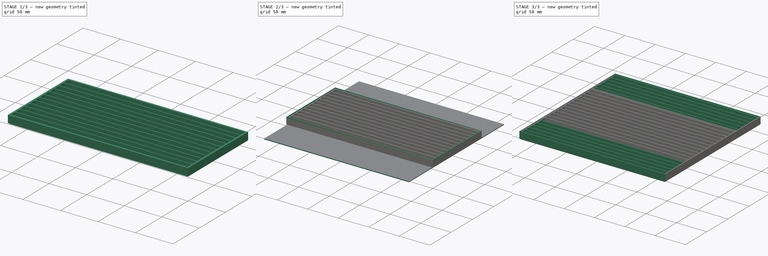
[diagram: build sequence overview — one tinted view per stage of 3, left to right]
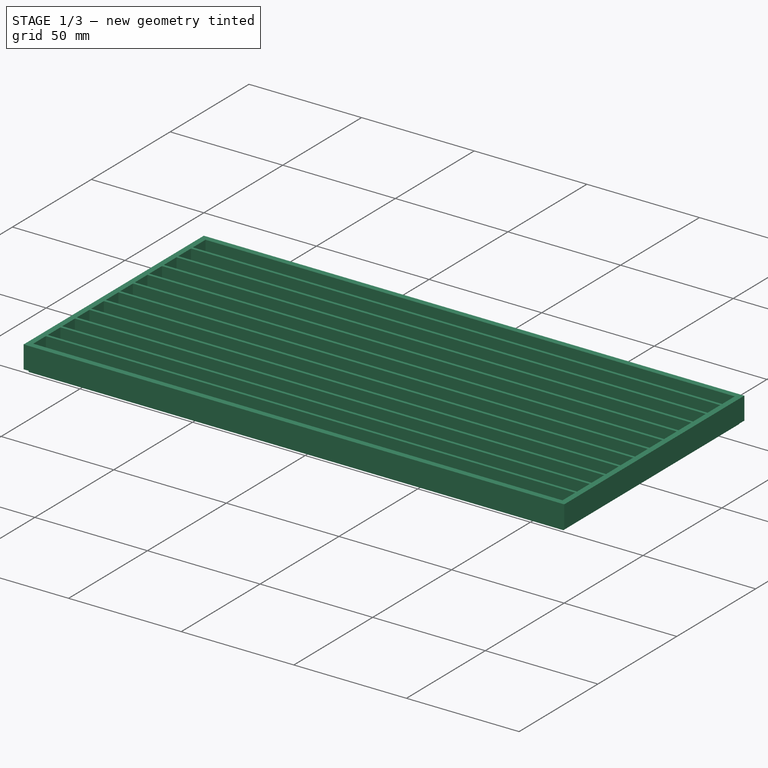
[diagram: stage 1 of 3 — iso view after this stage's code; geometry added in this stage tinted green]
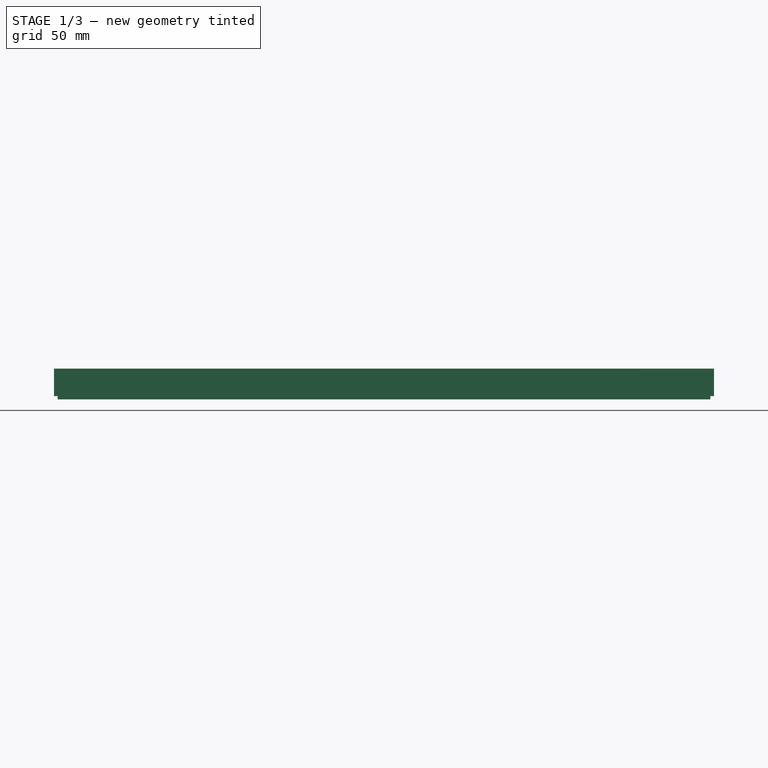
[diagram: stage 1 of 3 — front view after this stage's code; geometry added in this stage tinted green]
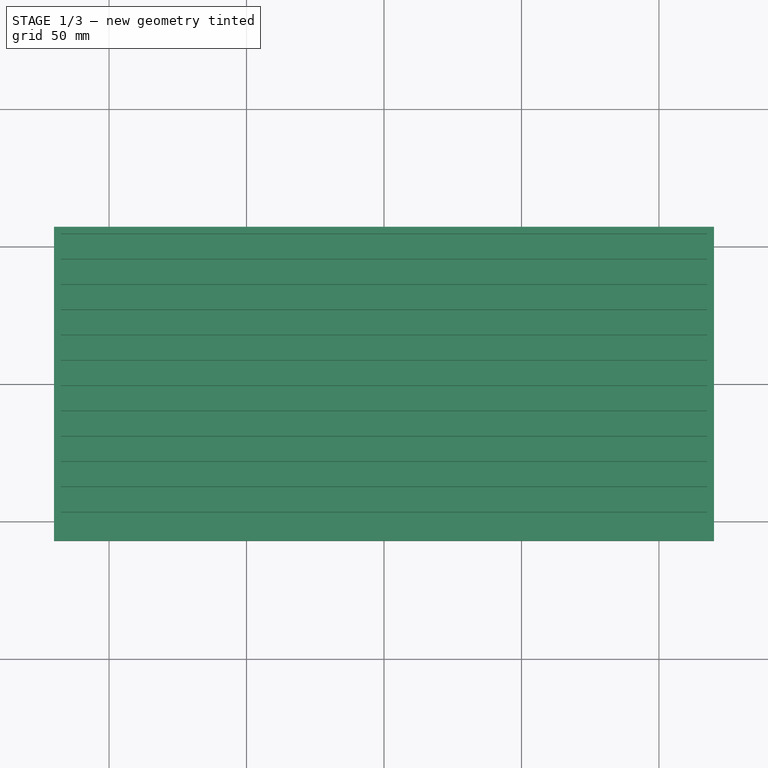
[diagram: stage 1 of 3 — top view after this stage's code; geometry added in this stage tinted green]
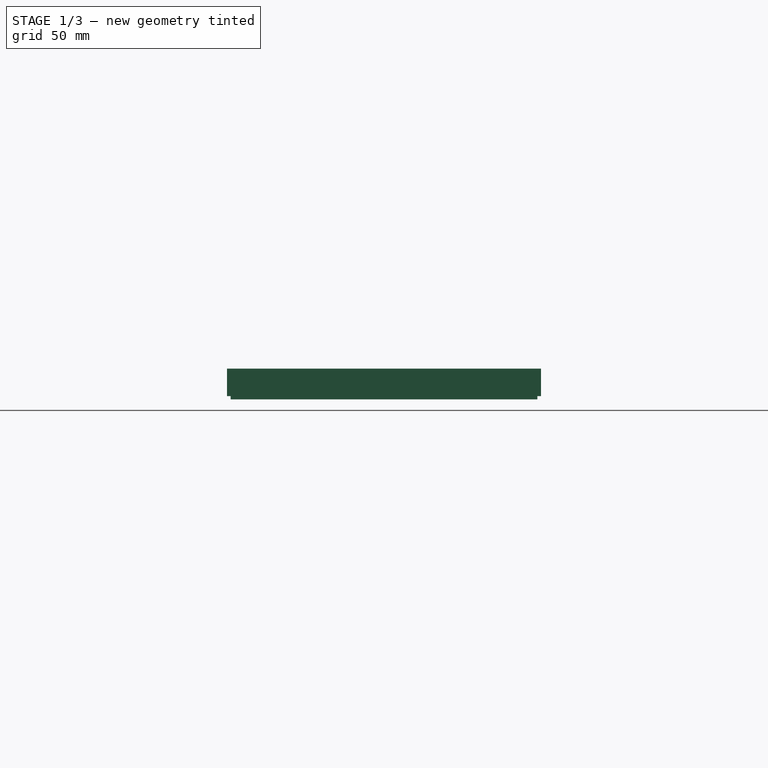
[diagram: stage 1 of 3 — right view after this stage's code; geometry added in this stage tinted green]
FCSTD DOCUMENT  (FreeCAD 0.16R6712 (Git))
Label: SMDTray
License: All rights reserved
LicenseURL: http://en.wikipedia.org/wiki/All_rights_reserved
objects: Sketcher::SketchObject×6, PartDesign::Pad×6
note: 18 computed .brp shape members not serialized (recipe doc carries the construction recipe); baked Part::Feature solids carry a one-line shape summary decoded from their .brp

FEATURE [Sketcher::SketchObject] Sketch004  label="Base001"
  sketch-geometry (4):
    g0: LineSegment StartX=-118.7 StartY=55.8 StartZ=0 EndX=118.7 EndY=55.8 EndZ=0
    g1: LineSegment StartX=118.7 StartY=55.8 StartZ=0 EndX=118.7 EndY=-55.8 EndZ=0
    g2: LineSegment StartX=118.7 StartY=-55.8 StartZ=0 EndX=-118.7 EndY=-55.8 EndZ=0
    g3: LineSegment StartX=-118.7 StartY=-55.8 StartZ=0 EndX=-118.7 EndY=55.8 EndZ=0
  constraints (12):
    c: Coincident(g0,g1)
    c: Coincident(g1,g2)
    c: Coincident(g2,g3)
    c: Coincident(g3,g0)
    c: Horizontal(g0)
    c: Horizontal(g2)
    c: Vertical(g1)
    c: Vertical(g3)
    c: Symmetric(g0,g0,g-2)
    c: DistanceX(g0,g0) = 237.4
    c: Symmetric(g0,g2,g-1)
    c: DistanceY(g3,g3) = 111.6
FEATURE [PartDesign::Pad] Pad003
  Length = 1.2
  Length2 = 100
  Sketch = -> Sketch004
  Type = 0
FEATURE [Sketcher::SketchObject] Sketch003  label="Grid001"
  Placement = pos=(0,0,1.2) rot=(0,0,1;0rad)
  Support = -> Pad003 [Face6]
  sketch-geometry (65):
    g0: LineSegment StartX=-120 StartY=57.1 StartZ=0 EndX=120 EndY=57.1 EndZ=0
    g1: LineSegment StartX=120 StartY=57.1 StartZ=0 EndX=120 EndY=-57.1 EndZ=0
    g2: LineSegment StartX=-120 StartY=-57.1 StartZ=0 EndX=-120 EndY=57.1 EndZ=0
    g3: LineSegment StartX=-117.5 StartY=-54.6 StartZ=0 EndX=117.5 EndY=-54.6 EndZ=0
    g4: LineSegment StartX=117.5 StartY=-54.6 StartZ=0 EndX=117.5 EndY=-46.6 EndZ=0
    g5: LineSegment StartX=117.5 StartY=-46.6 StartZ=0 EndX=-117.5 EndY=-46.6 EndZ=0
    g6: LineSegment StartX=-117.5 StartY=-46.6 StartZ=0 EndX=-117.5 EndY=-54.6 EndZ=0
    g7: LineSegment StartX=117.5 StartY=-37.4 StartZ=0 EndX=-117.5 EndY=-37.4 EndZ=0
    g8: LineSegment StartX=-117.5 StartY=-37.4 StartZ=0 EndX=-117.5 EndY=-45.4 EndZ=0
    g9: LineSegment StartX=-117.5 StartY=-45.4 StartZ=0 EndX=117.5 EndY=-45.4 EndZ=0
    g10: LineSegment StartX=117.5 StartY=-45.4 StartZ=0 EndX=117.5 EndY=-37.4 EndZ=0
    g11: LineSegment [constr] StartX=-117.5 StartY=-46.6 StartZ=0 EndX=-117.5 EndY=-45.4 EndZ=0
    g12: LineSegment StartX=-120 StartY=-57.1 StartZ=0 EndX=120 EndY=-57.1 EndZ=0
    g13: LineSegment StartX=-117.5 StartY=-36.2 StartZ=0 EndX=117.5 EndY=-36.2 EndZ=0
    g14: LineSegment StartX=117.5 StartY=-36.2 StartZ=0 EndX=117.5 EndY=-28.2 EndZ=0
    g15: LineSegment StartX=117.5 StartY=-28.2 StartZ=0 EndX=-117.5 EndY=-28.2 EndZ=0
    g16: LineSegment StartX=-117.5 StartY=-28.2 StartZ=0 EndX=-117.5 EndY=-36.2 EndZ=0
    g17: LineSegment StartX=-117.5 StartY=-19 StartZ=0 EndX=117.5 EndY=-19 EndZ=0
    g18: LineSegment StartX=117.5 StartY=-19 StartZ=0 EndX=117.5 EndY=-27 EndZ=0
    g19: LineSegment StartX=117.5 StartY=-27 StartZ=0 EndX=-117.5 EndY=-27 EndZ=0
    g20: LineSegment StartX=-117.5 StartY=-27 StartZ=0 EndX=-117.5 EndY=-19 EndZ=0
    g21: LineSegment StartX=117.5 StartY=-17.8 StartZ=0 EndX=-117.5 EndY=-17.8 EndZ=0
    g22: LineSegment StartX=-117.5 StartY=-17.8 StartZ=0 EndX=-117.5 EndY=-9.8 EndZ=0
    g23: LineSegment StartX=-117.5 StartY=-9.8 StartZ=0 EndX=117.5 EndY=-9.8 EndZ=0
    g24: LineSegment StartX=117.5 StartY=-9.8 StartZ=0 EndX=117.5 EndY=-17.8 EndZ=0
    g25: LineSegment StartX=-117.5 StartY=-8.6 StartZ=0 EndX=117.5 EndY=-8.6 EndZ=0
    g26: LineSegment StartX=117.5 StartY=-8.6 StartZ=0 EndX=117.5 EndY=-0.6 EndZ=0
    g27: LineSegment StartX=117.5 StartY=-0.6 StartZ=0 EndX=-117.5 EndY=-0.6 EndZ=0
    g28: LineSegment StartX=-117.5 StartY=-0.6 StartZ=0 EndX=-117.5 EndY=-8.6 EndZ=0
    g29: LineSegment StartX=-117.5 StartY=0.6 StartZ=0 EndX=117.5 EndY=0.6 EndZ=0
    g30: LineSegment StartX=117.5 StartY=0.6 StartZ=0 EndX=117.5 EndY=8.6 EndZ=0
    g31: LineSegment StartX=117.5 StartY=8.6 StartZ=0 EndX=-117.5 EndY=8.6 EndZ=0
    g32: LineSegment StartX=-117.5 StartY=8.6 StartZ=0 EndX=-117.5 EndY=0.6 EndZ=0
    g33: LineSegment StartX=117.5 StartY=9.8 StartZ=0 EndX=-117.5 EndY=9.8 EndZ=0
    g34: LineSegment StartX=-117.5 StartY=9.8 StartZ=0 EndX=-117.5 EndY=17.8 EndZ=0
    g35: LineSegment StartX=-117.5 StartY=17.8 StartZ=0 EndX=117.5 EndY=17.8 EndZ=0
    g36: LineSegment StartX=117.5 StartY=17.8 StartZ=0 EndX=117.5 EndY=9.8 EndZ=0
    g37: LineSegment StartX=-117.5 StartY=19 StartZ=0 EndX=117.5 EndY=19 EndZ=0
    g38: LineSegment StartX=117.5 StartY=19 StartZ=0 EndX=117.5 EndY=27 EndZ=0
    g39: LineSegment StartX=117.5 StartY=27 StartZ=0 EndX=-117.5 EndY=27 EndZ=0
    g40: LineSegment StartX=-117.5 StartY=27 StartZ=0 EndX=-117.5 EndY=19 EndZ=0
    g41: LineSegment StartX=117.5 StartY=28.2 StartZ=0 EndX=-117.5 EndY=28.2 EndZ=0
    g42: LineSegment StartX=-117.5 StartY=28.2 StartZ=0 EndX=-117.5 EndY=36.2 EndZ=0
    g43: LineSegment StartX=-117.5 StartY=36.2 StartZ=0 EndX=117.5 EndY=36.2 EndZ=0
    g44: LineSegment StartX=117.5 StartY=36.2 StartZ=0 EndX=117.5 EndY=28.2 EndZ=0
    g45: LineSegment [constr] StartX=-117.5 StartY=-37.4 StartZ=0 EndX=-117.5 EndY=-36.2 EndZ=0
    g46: LineSegment [constr] StartX=-117.5 StartY=-28.2 StartZ=0 EndX=-117.5 EndY=-27 EndZ=0
    g47: LineSegment [constr] StartX=-117.5 StartY=-19 StartZ=0 EndX=-117.5 EndY=-17.8 EndZ=0
    g48: LineSegment [constr] StartX=-117.5 StartY=-9.8 StartZ=0 EndX=-117.5 EndY=-8.6 EndZ=0
    g49: LineSegment [constr] StartX=-117.5 StartY=-0.6 StartZ=0 EndX=-117.5 EndY=0.6 EndZ=0
    g50: LineSegment [constr] StartX=-117.5 StartY=8.6 StartZ=0 EndX=-117.5 EndY=9.8 EndZ=0
    g51: LineSegment [constr] StartX=-117.5 StartY=17.8 StartZ=0 EndX=-117.5 EndY=19 EndZ=0
    g52: LineSegment [constr] StartX=-117.5 StartY=27 StartZ=0 EndX=-117.5 EndY=28.2 EndZ=0
    g53: LineSegment StartX=-117.5 StartY=37.4 StartZ=0 EndX=117.5 EndY=37.4 EndZ=0
    g54: LineSegment StartX=117.5 StartY=37.4 StartZ=0 EndX=117.5 EndY=45.4 EndZ=0
    g55: LineSegment StartX=117.5 StartY=45.4 StartZ=0 EndX=-117.5 EndY=45.4 EndZ=0
    g56: LineSegment StartX=-117.5 StartY=45.4 StartZ=0 EndX=-117.5 EndY=37.4 EndZ=0
    g57: LineSegment StartX=117.5 StartY=46.6 StartZ=0 EndX=-117.5 EndY=46.6 EndZ=0
    g58: LineSegment StartX=-117.5 StartY=46.6 StartZ=0 EndX=-117.5 EndY=54.6 EndZ=0
    g59: LineSegment StartX=-117.5 StartY=54.6 StartZ=0 EndX=117.5 EndY=54.6 EndZ=0
    g60: LineSegment StartX=117.5 StartY=54.6 StartZ=0 EndX=117.5 EndY=46.6 EndZ=0
    g61: LineSegment [constr] StartX=-117.5 StartY=36.2 StartZ=0 EndX=-117.5 EndY=37.4 EndZ=0
    g62: LineSegment [constr] StartX=-117.5 StartY=45.4 StartZ=0 EndX=-117.5 EndY=46.6 EndZ=0
    g63: LineSegment [constr] StartX=-117.5 StartY=54.6 StartZ=0 EndX=-117.5 EndY=57.1 EndZ=0
    g64: LineSegment [constr] StartX=-117.5 StartY=-54.6 StartZ=0 EndX=-117.5 EndY=-57.1 EndZ=0
  constraints (185):
    c: Horizontal(g0)
    c: Vertical(g1)
    c: Vertical(g2)
    c: Symmetric(g0,g0,g-2)
    c: Symmetric(g0,g2,g-1)
    c: DistanceX(g0,g0) = 240
    c: Coincident(g3,g4)
    c: Coincident(g4,g5)
    c: Coincident(g5,g6)
    c: Coincident(g6,g3)
    c: Horizontal(g3)
    c: Horizontal(g5)
    c: Vertical(g4)
    c: Vertical(g6)
    c: DistanceX(g2,g3) = 2.5
    c: DistanceY(g2,g3) = 2.5
    c: Symmetric(g3,g3,g-2)
    c: DistanceY(g6,g6) = 8
    c: Coincident(g9,g10)
    c: Coincident(g10,g7)
    c: Coincident(g7,g8)
    c: Coincident(g8,g9)
    c: Horizontal(g9)
    c: Horizontal(g7)
    c: Vertical(g10)
    c: Vertical(g8)
    c: Coincident(g11,g5)
    c: Vertical(g11)
    c: Coincident(g8,g11)
    c: DistanceY(g11,g11) = 1.2
    c: Coincident(g12,g2)
    c: Coincident(g12,g1)
    c: Horizontal(g12)
    c: Equal(g8,g6)
    c: Equal(g5,g7)
    c: Coincident(g13,g14)
    c: Coincident(g14,g15)
    c: Coincident(g15,g16)
    c: Coincident(g16,g13)
    c: Horizontal(g13)
    c: Horizontal(g15)
    c: Vertical(g14)
    c: Vertical(g16)
    c: Coincident(g17,g18)
    c: Coincident(g18,g19)
    c: Coincident(g19,g20)
    c: Coincident(g20,g17)
    c: Horizontal(g17)
    c: Horizontal(g19)
    c: Vertical(g18)
    c: Vertical(g20)
    c: Coincident(g21,g22)
    c: Coincident(g22,g23)
    c: Coincident(g23,g24)
    c: Coincident(g24,g21)
    c: Horizontal(g21)
    c: Horizontal(g23)
    c: Vertical(g22)
    c: Vertical(g24)
    c: Coincident(g25,g26)
    c: Coincident(g26,g27)
    c: Coincident(g27,g28)
    c: Coincident(g28,g25)
    c: Horizontal(g25)
    c: Horizontal(g27)
    c: Vertical(g26)
    c: Vertical(g28)
    c: Coincident(g29,g30)
    c: Coincident(g30,g31)
    c: Coincident(g31,g32)
    c: Coincident(g32,g29)
    c: Horizontal(g29)
    c: Horizontal(g31)
    c: Vertical(g30)
    c: Vertical(g32)
    c: Coincident(g33,g34)
    c: Coincident(g34,g35)
    c: Coincident(g35,g36)
    c: Coincident(g36,g33)
    c: Horizontal(g33)
    c: Horizontal(g35)
    c: Vertical(g34)
    c: Vertical(g36)
    c: Coincident(g37,g38)
    c: Coincident(g38,g39)
    c: Coincident(g39,g40)
    c: Coincident(g40,g37)
    c: Horizontal(g37)
    c: Horizontal(g39)
    c: Vertical(g38)
    c: Vertical(g40)
    c: Coincident(g41,g42)
    c: Coincident(g42,g43)
    c: Coincident(g43,g44)
    c: Coincident(g44,g41)
    c: Horizontal(g41)
    c: Horizontal(g43)
    c: Vertical(g42)
    c: Vertical(g44)
    c: Coincident(g45,g7)
    c: Coincident(g45,g13)
    c: Coincident(g46,g15)
    c: Coincident(g46,g19)
    c: Vertical(g46)
    c: Coincident(g47,g17)
    c: Coincident(g47,g21)
    c: Vertical(g47)
    c: Coincident(g48,g22)
    c: Coincident(g48,g25)
    c: Vertical(g48)
    c: Coincident(g49,g27)
    c: Coincident(g49,g29)
    c: Coincident(g50,g31)
    c: Coincident(g50,g33)
    c: Coincident(g51,g34)
    c: Coincident(g51,g37)
    c: Coincident(g52,g39)
    c: Coincident(g52,g41)
    c: Vertical(g52)
    c: Vertical(g51)
    c: Vertical(g50)
    c: Vertical(g49)
    c: Equal(g46,g47)
    c: Equal(g47,g48)
    c: Equal(g48,g49)
    c: Equal(g49,g50)
    c: Equal(g50,g51)
    c: Equal(g51,g52)
    c: Vertical(g45)
    c: Equal(g11,g45)
    c: Equal(g45,g46)
    c: Equal(g6,g8)
    c: Equal(g8,g16)
    c: Equal(g16,g20)
    c: Equal(g20,g22)
    c: Equal(g22,g28)
    c: Equal(g28,g32)
    c: Equal(g32,g34)
    c: Equal(g34,g40)
    c: Equal(g40,g42)
    c: Coincident(g53,g54)
    c: Coincident(g54,g55)
    c: Coincident(g55,g56)
    c: Coincident(g56,g53)
    c: Horizontal(g53)
    c: Horizontal(g55)
    c: Vertical(g54)
    c: Vertical(g56)
    c: Coincident(g57,g58)
    c: Coincident(g58,g59)
    c: Coincident(g59,g60)
    c: Coincident(g60,g57)
    c: Horizontal(g57)
    c: Horizontal(g59)
    c: Vertical(g58)
    c: Vertical(g60)
    c: Coincident(g61,g42)
    c: Coincident(g61,g53)
    c: Coincident(g62,g55)
    c: Coincident(g62,g57)
    c: Vertical(g62)
    c: Vertical(g61)
    c: Equal(g52,g61)
    c: Equal(g61,g62)
    c: Equal(g42,g56)
    c: Equal(g56,g58)
    c: Equal(g7,g15)
    c: Equal(g15,g17)
    c: Equal(g17,g23)
    c: Equal(g23,g27)
    c: Equal(g27,g31)
    c: Equal(g31,g35)
    c: Equal(g35,g39)
    c: Equal(g39,g43)
    c: Equal(g43,g55)
    c: Equal(g55,g59)
    c: Coincident(g63,g58)
    c: Vertical(g63)
    c: Coincident(g64,g3)
    c: PointOnObject(g64,g12)
    c: Vertical(g64)
    c: PointOnObject(g63,g0)
    c: Coincident(g0,g2)
    c: Coincident(g0,g1)
    c: Equal(g63,g64)
FEATURE [PartDesign::Pad] Pad004
  Length = 10
  Length2 = 100
  Sketch = -> Sketch003
  Type = 0
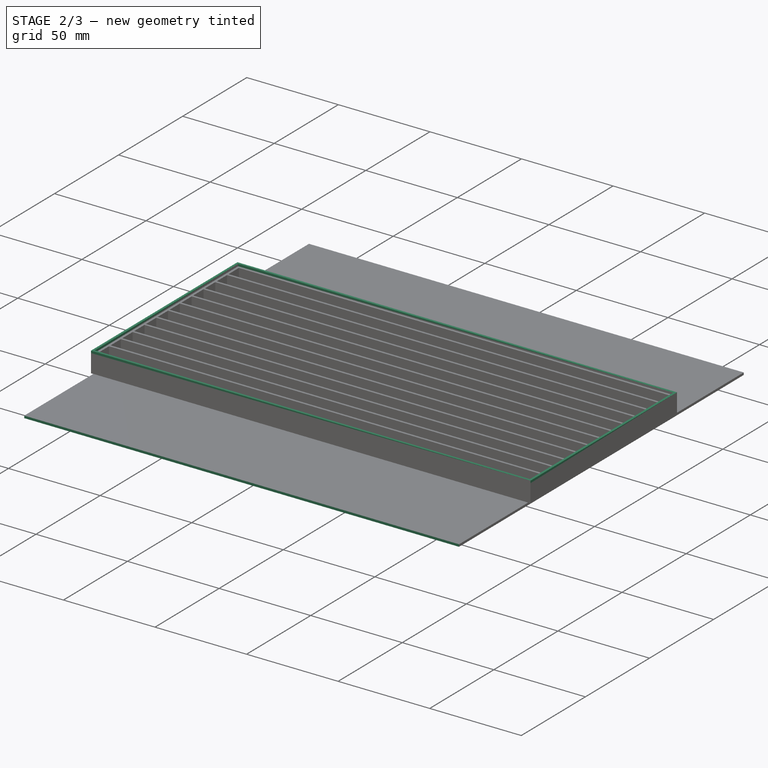
[diagram: stage 2 of 3 — iso view after this stage's code; geometry added in this stage tinted green]
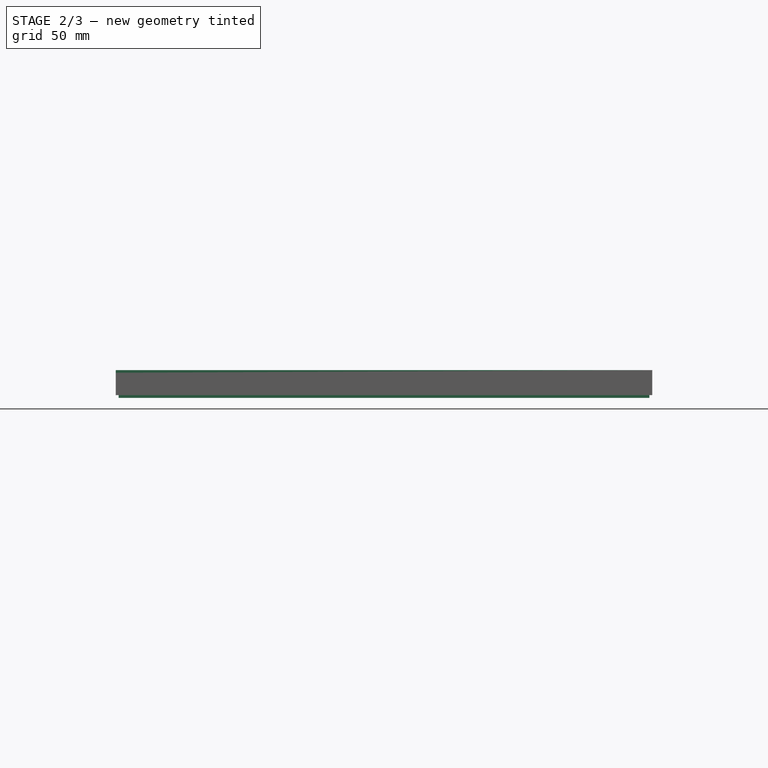
[diagram: stage 2 of 3 — front view after this stage's code; geometry added in this stage tinted green]
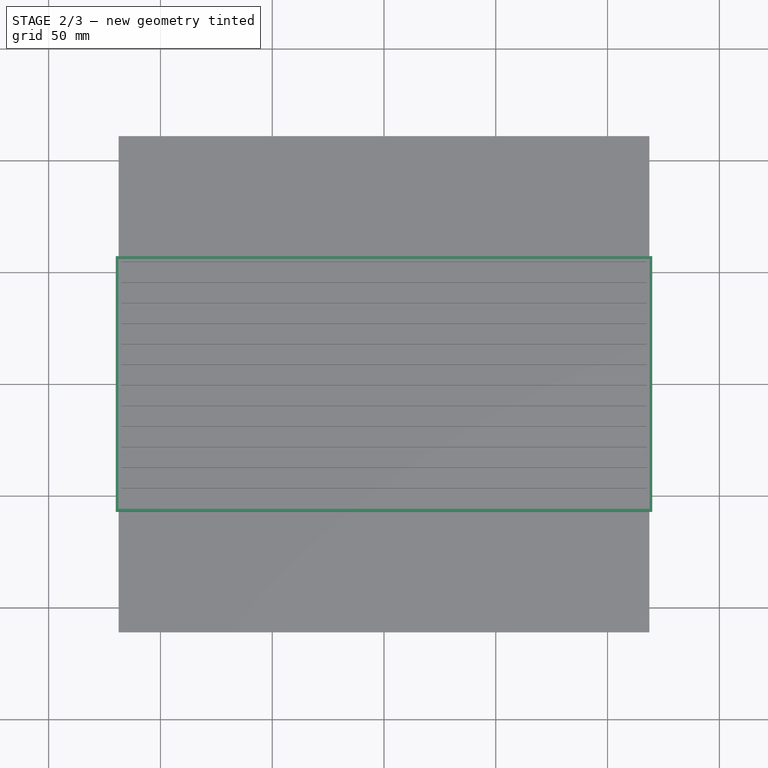
[diagram: stage 2 of 3 — top view after this stage's code; geometry added in this stage tinted green]
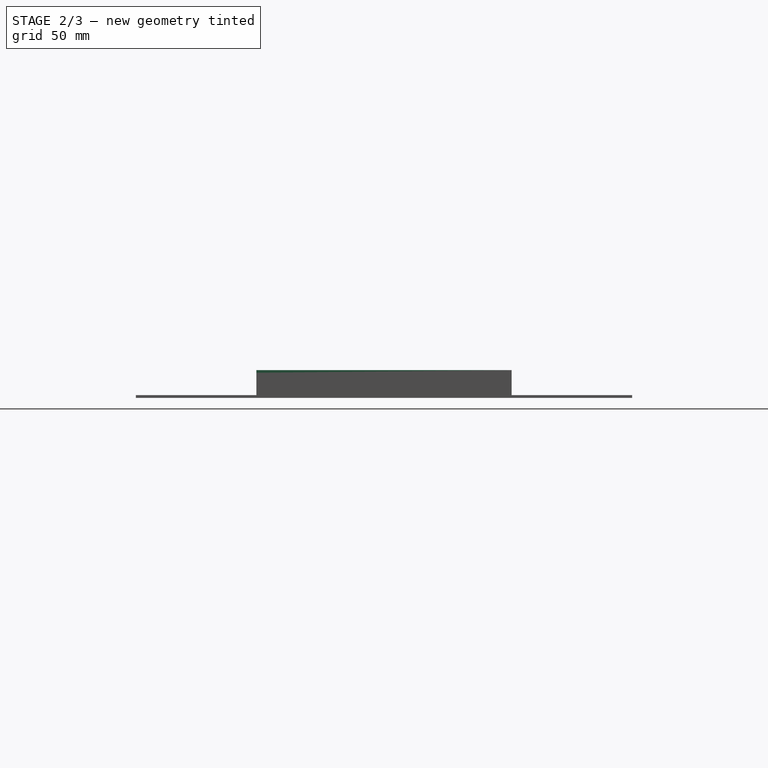
[diagram: stage 2 of 3 — right view after this stage's code; geometry added in this stage tinted green]
FEATURE [Sketcher::SketchObject] Sketch001  label="Base"
  sketch-geometry (4):
    g0: LineSegment StartX=-118.7 StartY=111 StartZ=0 EndX=118.7 EndY=111 EndZ=0
    g1: LineSegment StartX=118.7 StartY=111 StartZ=0 EndX=118.7 EndY=-111 EndZ=0
    g2: LineSegment StartX=118.7 StartY=-111 StartZ=0 EndX=-118.7 EndY=-111 EndZ=0
    g3: LineSegment StartX=-118.7 StartY=-111 StartZ=0 EndX=-118.7 EndY=111 EndZ=0
  constraints (12):
    c: Coincident(g0,g1)
    c: Coincident(g1,g2)
    c: Coincident(g2,g3)
    c: Coincident(g3,g0)
    c: Horizontal(g0)
    c: Horizontal(g2)
    c: Vertical(g1)
    c: Vertical(g3)
    c: Symmetric(g0,g0,g-2)
    c: DistanceX(g0,g0) = 237.4
    c: Symmetric(g0,g2,g-1)
    c: DistanceY(g3,g3) = 222
FEATURE [PartDesign::Pad] Pad
  Length = 1.25
  Length2 = 100
  Sketch = -> Sketch001
  Type = 0
FEATURE [Sketcher::SketchObject] Sketch005
  Placement = pos=(0,0,11.2) rot=(0,0,1;0rad)
  Support = -> Pad004 [Face11]
  sketch-geometry (8):
    g0: LineSegment StartX=-120 StartY=57.1 StartZ=0 EndX=120 EndY=57.1 EndZ=0
    g1: LineSegment StartX=120 StartY=57.1 StartZ=0 EndX=120 EndY=-57.1 EndZ=0
    g2: LineSegment StartX=120 StartY=-57.1 StartZ=0 EndX=-120 EndY=-57.1 EndZ=0
    g3: LineSegment StartX=-120 StartY=-57.1 StartZ=0 EndX=-120 EndY=57.1 EndZ=0
    g4: LineSegment StartX=-118.8 StartY=55.9 StartZ=0 EndX=118.8 EndY=55.9 EndZ=0
    g5: LineSegment StartX=118.8 StartY=55.9 StartZ=0 EndX=118.8 EndY=-55.9 EndZ=0
    g6: LineSegment StartX=118.8 StartY=-55.9 StartZ=0 EndX=-118.8 EndY=-55.9 EndZ=0
    g7: LineSegment StartX=-118.8 StartY=-55.9 StartZ=0 EndX=-118.8 EndY=55.9 EndZ=0
  constraints (24):
    c: Coincident(g0,g1)
    c: Coincident(g1,g2)
    c: Coincident(g2,g3)
    c: Coincident(g3,g0)
    c: Horizontal(g0)
    c: Horizontal(g2)
    c: Vertical(g1)
    c: Vertical(g3)
    c: Symmetric(g0,g0,g-2)
    c: Symmetric(g0,g2,g-1)
    c: DistanceX(g0,g0) = 240
    c: DistanceY(g3,g3) = 114.2
    c: Coincident(g4,g5)
    c: Coincident(g5,g6)
    c: Coincident(g6,g7)
    c: Coincident(g7,g4)
    c: Horizontal(g4)
    c: Horizontal(g6)
    c: Vertical(g5)
    c: Vertical(g7)
    c: Symmetric(g4,g4,g-2)
    c: Symmetric(g4,g6,g-1)
    c: DistanceX(g2,g6) = 1.2
    c: DistanceY(g2,g6) = 1.2
FEATURE [PartDesign::Pad] Pad005
  Length = 1.2
  Length2 = 100
  Sketch = -> Sketch005
  Type = 0
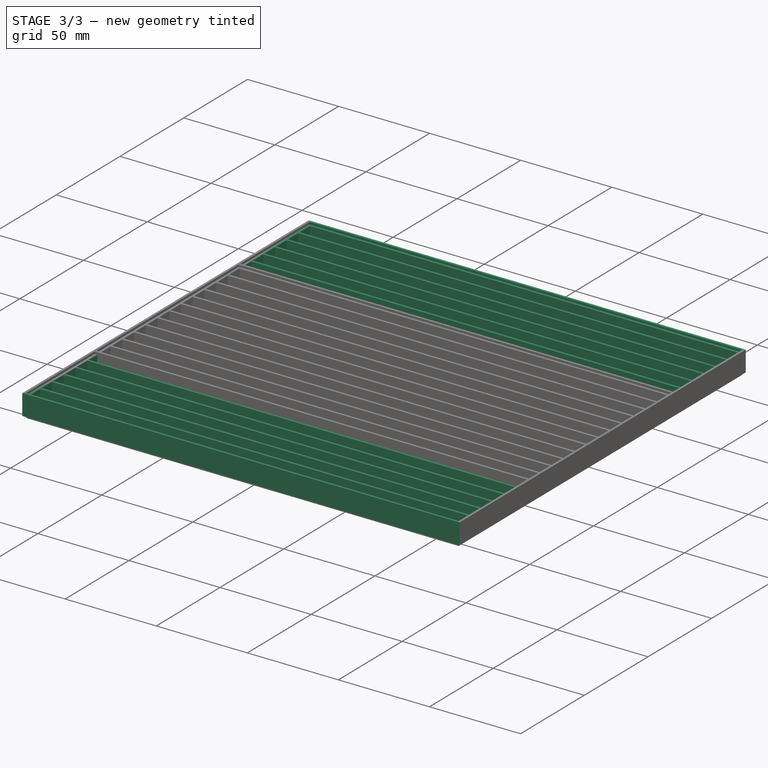
[diagram: stage 3 of 3 — iso view after this stage's code; geometry added in this stage tinted green]
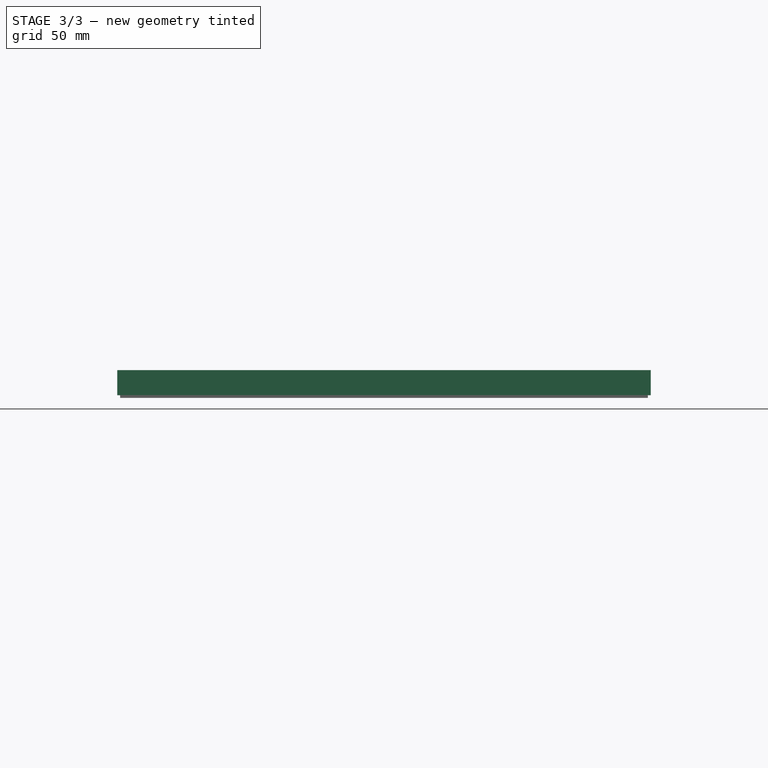
[diagram: stage 3 of 3 — front view after this stage's code; geometry added in this stage tinted green]
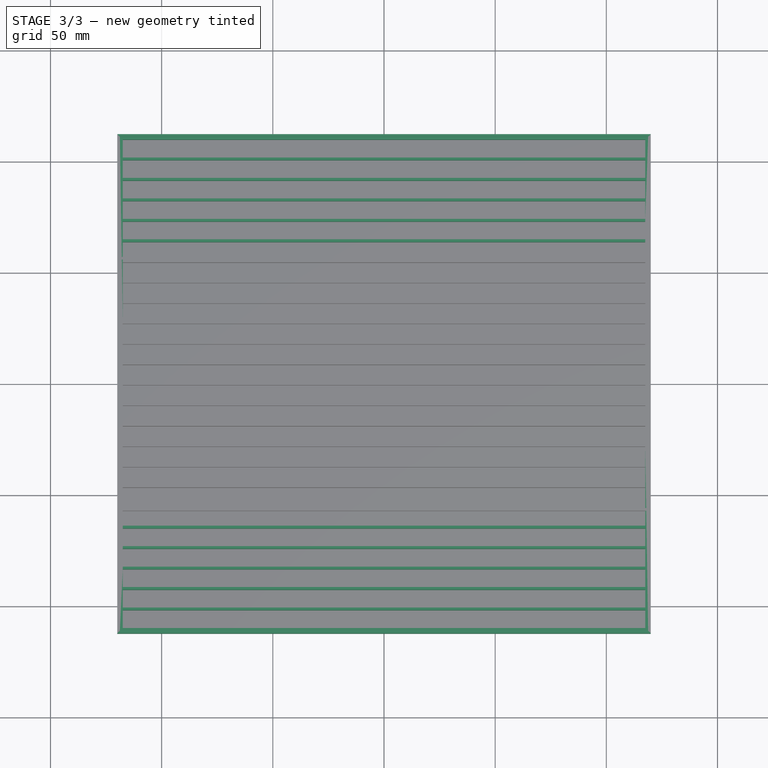
[diagram: stage 3 of 3 — top view after this stage's code; geometry added in this stage tinted green]
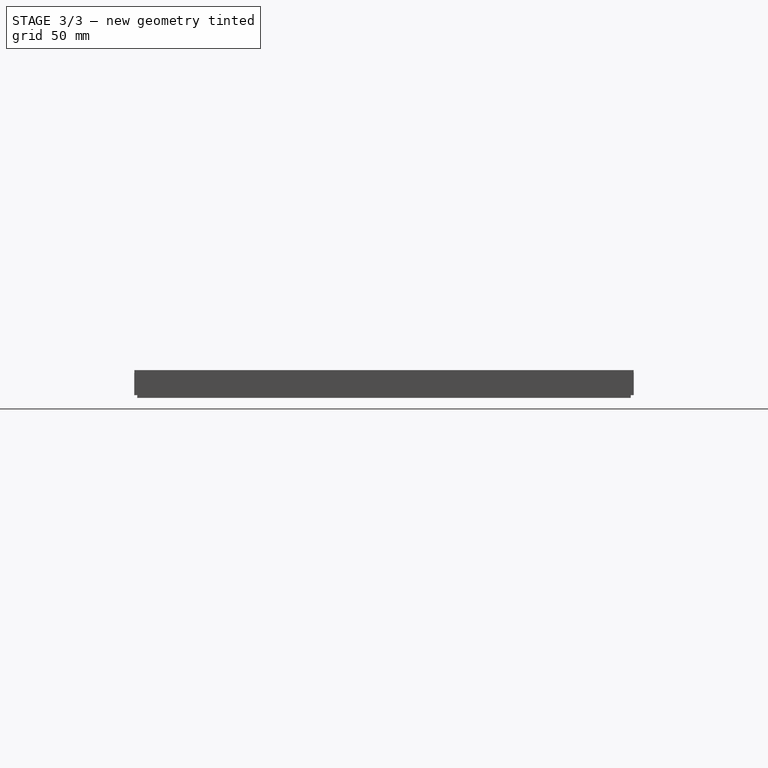
[diagram: stage 3 of 3 — right view after this stage's code; geometry added in this stage tinted green]
FEATURE [Sketcher::SketchObject] Sketch  label="Grid"
  Placement = pos=(0,0,1.25) rot=(0,0,1;0rad)
  Support = -> Pad [Face6]
  sketch-geometry (125):
    g0: LineSegment StartX=-120 StartY=112.323 StartZ=0 EndX=120 EndY=112.323 EndZ=0
    g1: LineSegment StartX=120 StartY=112.323 StartZ=0 EndX=120 EndY=-112.323 EndZ=0
    g2: LineSegment StartX=-120 StartY=-112.323 StartZ=0 EndX=-120 EndY=112.323 EndZ=0
    g3: LineSegment StartX=-117.5 StartY=-109.823 StartZ=0 EndX=117.5 EndY=-109.823 EndZ=0
    g4: LineSegment StartX=117.5 StartY=-109.823 StartZ=0 EndX=117.5 EndY=-101.823 EndZ=0
    g5: LineSegment StartX=117.5 StartY=-101.823 StartZ=0 EndX=-117.5 EndY=-101.823 EndZ=0
    g6: LineSegment StartX=-117.5 StartY=-101.823 StartZ=0 EndX=-117.5 EndY=-109.823 EndZ=0
    g7: LineSegment StartX=117.5 StartY=-92.621 StartZ=0 EndX=-117.5 EndY=-92.621 EndZ=0
    g8: LineSegment StartX=-117.5 StartY=-92.621 StartZ=0 EndX=-117.5 EndY=-100.621 EndZ=0
    g9: LineSegment StartX=-117.5 StartY=-100.621 StartZ=0 EndX=117.5 EndY=-100.621 EndZ=0
    g10: LineSegment StartX=117.5 StartY=-100.621 StartZ=0 EndX=117.5 EndY=-92.621 EndZ=0
    g11: LineSegment [constr] StartX=-117.5 StartY=-101.823 StartZ=0 EndX=-117.5 EndY=-100.621 EndZ=0
    g12: LineSegment StartX=-120 StartY=-112.323 StartZ=0 EndX=120 EndY=-112.323 EndZ=0
    g13: LineSegment StartX=-117.5 StartY=-91.419 StartZ=0 EndX=117.5 EndY=-91.419 EndZ=0
    g14: LineSegment StartX=117.5 StartY=-91.419 StartZ=0 EndX=117.5 EndY=-83.419 EndZ=0
    g15: LineSegment StartX=117.5 StartY=-83.419 StartZ=0 EndX=-117.5 EndY=-83.419 EndZ=0
    g16: LineSegment StartX=-117.5 StartY=-83.419 StartZ=0 EndX=-117.5 EndY=-91.419 EndZ=0
    g17: LineSegment StartX=-117.5 StartY=-74.217 StartZ=0 EndX=117.5 EndY=-74.217 EndZ=0
    g18: LineSegment StartX=117.5 StartY=-74.217 StartZ=0 EndX=117.5 EndY=-82.217 EndZ=0
    g19: LineSegment StartX=117.5 StartY=-82.217 StartZ=0 EndX=-117.5 EndY=-82.217 EndZ=0
    g20: LineSegment StartX=-117.5 StartY=-82.217 StartZ=0 EndX=-117.5 EndY=-74.217 EndZ=0
    g21: LineSegment StartX=117.5 StartY=-73.015 StartZ=0 EndX=-117.5 EndY=-73.015 EndZ=0
    g22: LineSegment StartX=-117.5 StartY=-73.015 StartZ=0 EndX=-117.5 EndY=-65.015 EndZ=0
    g23: LineSegment StartX=-117.5 StartY=-65.015 StartZ=0 EndX=117.5 EndY=-65.015 EndZ=0
    g24: LineSegment StartX=117.5 StartY=-65.015 StartZ=0 EndX=117.5 EndY=-73.015 EndZ=0
    g25: LineSegment StartX=-117.5 StartY=-63.813 StartZ=0 EndX=117.5 EndY=-63.813 EndZ=0
    g26: LineSegment StartX=117.5 StartY=-63.813 StartZ=0 EndX=117.5 EndY=-55.813 EndZ=0
    g27: LineSegment StartX=117.5 StartY=-55.813 StartZ=0 EndX=-117.5 EndY=-55.813 EndZ=0
    g28: LineSegment StartX=-117.5 StartY=-55.813 StartZ=0 EndX=-117.5 EndY=-63.813 EndZ=0
    g29: LineSegment StartX=-117.5 StartY=-54.611 StartZ=0 EndX=117.5 EndY=-54.611 EndZ=0
    g30: LineSegment StartX=117.5 StartY=-54.611 StartZ=0 EndX=117.5 EndY=-46.611 EndZ=0
    g31: LineSegment StartX=117.5 StartY=-46.611 StartZ=0 EndX=-117.5 EndY=-46.611 EndZ=0
    g32: LineSegment StartX=-117.5 StartY=-46.611 StartZ=0 EndX=-117.5 EndY=-54.611 EndZ=0
    g33: LineSegment StartX=117.5 StartY=-45.409 StartZ=0 EndX=-117.5 EndY=-45.409 EndZ=0
    g34: LineSegment StartX=-117.5 StartY=-45.409 StartZ=0 EndX=-117.5 EndY=-37.409 EndZ=0
    g35: LineSegment StartX=-117.5 StartY=-37.409 StartZ=0 EndX=117.5 EndY=-37.409 EndZ=0
    g36: LineSegment StartX=117.5 StartY=-37.409 StartZ=0 EndX=117.5 EndY=-45.409 EndZ=0
    g37: LineSegment StartX=-117.5 StartY=-36.207 StartZ=0 EndX=117.5 EndY=-36.207 EndZ=0
    g38: LineSegment StartX=117.5 StartY=-36.207 StartZ=0 EndX=117.5 EndY=-28.207 EndZ=0
    g39: LineSegment StartX=117.5 StartY=-28.207 StartZ=0 EndX=-117.5 EndY=-28.207 EndZ=0
    g40: LineSegment StartX=-117.5 StartY=-28.207 StartZ=0 EndX=-117.5 EndY=-36.207 EndZ=0
    g41: LineSegment StartX=117.5 StartY=-27.005 StartZ=0 EndX=-117.5 EndY=-27.005 EndZ=0
    g42: LineSegment StartX=-117.5 StartY=-27.005 StartZ=0 EndX=-117.5 EndY=-19.005 EndZ=0
    g43: LineSegment StartX=-117.5 StartY=-19.005 StartZ=0 EndX=117.5 EndY=-19.005 EndZ=0
    g44: LineSegment StartX=117.5 StartY=-19.005 StartZ=0 EndX=117.5 EndY=-27.005 EndZ=0
    g45: LineSegment [constr] StartX=-117.5 StartY=-92.621 StartZ=0 EndX=-117.5 EndY=-91.419 EndZ=0
    g46: LineSegment [constr] StartX=-117.5 StartY=-83.419 StartZ=0 EndX=-117.5 EndY=-82.217 EndZ=0
    g47: LineSegment [constr] StartX=-117.5 StartY=-74.217 StartZ=0 EndX=-117.5 EndY=-73.015 EndZ=0
    g48: LineSegment [constr] StartX=-117.5 StartY=-65.015 StartZ=0 EndX=-117.5 EndY=-63.813 EndZ=0
    g49: LineSegment [constr] StartX=-117.5 StartY=-55.813 StartZ=0 EndX=-117.5 EndY=-54.611 EndZ=0
    g50: LineSegment [constr] StartX=-117.5 StartY=-46.611 StartZ=0 EndX=-117.5 EndY=-45.409 EndZ=0
    g51: LineSegment [constr] StartX=-117.5 StartY=-37.409 StartZ=0 EndX=-117.5 EndY=-36.207 EndZ=0
    g52: LineSegment [constr] StartX=-117.5 StartY=-28.207 StartZ=0 EndX=-117.5 EndY=-27.005 EndZ=0
    g53: LineSegment StartX=-117.5 StartY=-17.803 StartZ=0 EndX=117.5 EndY=-17.803 EndZ=0
    g54: LineSegment StartX=117.5 StartY=-17.803 StartZ=0 EndX=117.5 EndY=-9.803 EndZ=0
    g55: LineSegment StartX=117.5 StartY=-9.803 StartZ=0 EndX=-117.5 EndY=-9.803 EndZ=0
    g56: LineSegment StartX=-117.5 StartY=-9.803 StartZ=0 EndX=-117.5 EndY=-17.803 EndZ=0
    g57: LineSegment StartX=117.5 StartY=-8.601 StartZ=0 EndX=-117.5 EndY=-8.601 EndZ=0
    g58: LineSegment StartX=-117.5 StartY=-8.601 StartZ=0 EndX=-117.5 EndY=-0.601 EndZ=0
    g59: LineSegment StartX=-117.5 StartY=-0.601 StartZ=0 EndX=117.5 EndY=-0.601 EndZ=0
    g60: LineSegment StartX=117.5 StartY=-0.601 StartZ=0 EndX=117.5 EndY=-8.601 EndZ=0
    g61: LineSegment [constr] StartX=-117.5 StartY=-19.005 StartZ=0 EndX=-117.5 EndY=-17.803 EndZ=0
    g62: LineSegment [constr] StartX=-117.5 StartY=-9.803 StartZ=0 EndX=-117.5 EndY=-8.601 EndZ=0
    g63: LineSegment StartX=-117.5 StartY=0.601 StartZ=0 EndX=117.5 EndY=0.601 EndZ=0
    g64: LineSegment StartX=117.5 StartY=0.601 StartZ=0 EndX=117.5 EndY=8.601 EndZ=0
    g65: LineSegment StartX=117.5 StartY=8.601 StartZ=0 EndX=-117.5 EndY=8.601 EndZ=0
    g66: LineSegment StartX=-117.5 StartY=8.601 StartZ=0 EndX=-117.5 EndY=0.601 EndZ=0
    g67: LineSegment [constr] StartX=-117.5 StartY=-0.601 StartZ=0 EndX=-117.5 EndY=0.601 EndZ=0
    g68: LineSegment StartX=-117.5 StartY=9.803 StartZ=0 EndX=117.5 EndY=9.803 EndZ=0
    g69: LineSegment StartX=117.5 StartY=9.803 StartZ=0 EndX=117.5 EndY=17.803 EndZ=0
    g70: LineSegment StartX=117.5 StartY=17.803 StartZ=0 EndX=-117.5 EndY=17.803 EndZ=0
    g71: LineSegment StartX=-117.5 StartY=17.803 StartZ=0 EndX=-117.5 EndY=9.803 EndZ=0
    g72: LineSegment StartX=-117.5 StartY=19.005 StartZ=0 EndX=117.5 EndY=19.005 EndZ=0
    g73: LineSegment StartX=117.5 StartY=19.005 StartZ=0 EndX=117.5 EndY=27.005 EndZ=0
    g74: LineSegment StartX=117.5 StartY=27.005 StartZ=0 EndX=-117.5 EndY=27.005 EndZ=0
    g75: LineSegment StartX=-117.5 StartY=27.005 StartZ=0 EndX=-117.5 EndY=19.005 EndZ=0
    g76: LineSegment StartX=-117.5 StartY=28.207 StartZ=0 EndX=117.5 EndY=28.207 EndZ=0
    g77: LineSegment StartX=117.5 StartY=28.207 StartZ=0 EndX=117.5 EndY=36.207 EndZ=0
    g78: LineSegment StartX=117.5 StartY=36.207 StartZ=0 EndX=-117.5 EndY=36.207 EndZ=0
    g79: LineSegment StartX=-117.5 StartY=36.207 StartZ=0 EndX=-117.5 EndY=28.207 EndZ=0
    g80: LineSegment StartX=-117.5 StartY=37.409 StartZ=0 EndX=117.5 EndY=37.409 EndZ=0
    g81: LineSegment StartX=117.5 StartY=37.409 StartZ=0 EndX=117.5 EndY=45.409 EndZ=0
    g82: LineSegment StartX=117.5 StartY=45.409 StartZ=0 EndX=-117.5 EndY=45.409 EndZ=0
    g83: LineSegment StartX=-117.5 StartY=45.409 StartZ=0 EndX=-117.5 EndY=37.409 EndZ=0
    g84: LineSegment StartX=-117.5 StartY=46.611 StartZ=0 EndX=117.5 EndY=46.611 EndZ=0
    g85: LineSegment StartX=117.5 StartY=46.611 StartZ=0 EndX=117.5 EndY=54.611 EndZ=0
    g86: LineSegment StartX=117.5 StartY=54.611 StartZ=0 EndX=-117.5 EndY=54.611 EndZ=0
    g87: LineSegment StartX=-117.5 StartY=54.611 StartZ=0 EndX=-117.5 EndY=46.611 EndZ=0
    g88: LineSegment StartX=-117.5 StartY=55.813 StartZ=0 EndX=117.5 EndY=55.813 EndZ=0
    g89: LineSegment StartX=117.5 StartY=55.813 StartZ=0 EndX=117.5 EndY=63.813 EndZ=0
    g90: LineSegment StartX=117.5 StartY=63.813 StartZ=0 EndX=-117.5 EndY=63.813 EndZ=0
    g91: LineSegment StartX=-117.5 StartY=63.813 StartZ=0 EndX=-117.5 EndY=55.813 EndZ=0
    g92: LineSegment StartX=-117.5 StartY=65.015 StartZ=0 EndX=117.5 EndY=65.015 EndZ=0
    g93: LineSegment StartX=117.5 StartY=65.015 StartZ=0 EndX=117.5 EndY=73.015 EndZ=0
    g94: LineSegment StartX=117.5 StartY=73.015 StartZ=0 EndX=-117.5 EndY=73.015 EndZ=0
    g95: LineSegment StartX=-117.5 StartY=73.015 StartZ=0 EndX=-117.5 EndY=65.015 EndZ=0
    g96: LineSegment StartX=-117.5 StartY=74.217 StartZ=0 EndX=117.5 EndY=74.217 EndZ=0
    g97: LineSegment StartX=117.5 StartY=74.217 StartZ=0 EndX=117.5 EndY=82.217 EndZ=0
    g98: LineSegment StartX=117.5 StartY=82.217 StartZ=0 EndX=-117.5 EndY=82.217 EndZ=0
    g99: LineSegment StartX=-117.5 StartY=82.217 StartZ=0 EndX=-117.5 EndY=74.217 EndZ=0
    g100: LineSegment StartX=-117.5 StartY=83.419 StartZ=0 EndX=117.5 EndY=83.419 EndZ=0
    g101: LineSegment StartX=117.5 StartY=83.419 StartZ=0 EndX=117.5 EndY=91.419 EndZ=0
    g102: LineSegment StartX=117.5 StartY=91.419 StartZ=0 EndX=-117.5 EndY=91.419 EndZ=0
    g103: LineSegment StartX=-117.5 StartY=91.419 StartZ=0 EndX=-117.5 EndY=83.419 EndZ=0
    g104: LineSegment StartX=-117.5 StartY=92.621 StartZ=0 EndX=117.5 EndY=92.621 EndZ=0
    g105: LineSegment StartX=117.5 StartY=92.621 StartZ=0 EndX=117.5 EndY=100.621 EndZ=0
    g106: LineSegment StartX=117.5 StartY=100.621 StartZ=0 EndX=-117.5 EndY=100.621 EndZ=0
    g107: LineSegment StartX=-117.5 StartY=100.621 StartZ=0 EndX=-117.5 EndY=92.621 EndZ=0
    g108: LineSegment [constr] StartX=-117.5 StartY=8.601 StartZ=0 EndX=-117.5 EndY=9.803 EndZ=0
    g109: LineSegment [constr] StartX=-117.5 StartY=17.803 StartZ=0 EndX=-117.5 EndY=19.005 EndZ=0
    g110: LineSegment [constr] StartX=-117.5 StartY=27.005 StartZ=0 EndX=-117.5 EndY=28.207 EndZ=0
    g111: LineSegment [constr] StartX=-117.5 StartY=36.207 StartZ=0 EndX=-117.5 EndY=37.409 EndZ=0
    g112: LineSegment [constr] StartX=-117.5 StartY=45.409 StartZ=0 EndX=-117.5 EndY=46.611 EndZ=0
    g113: LineSegment [constr] StartX=-117.5 StartY=54.611 StartZ=0 EndX=-117.5 EndY=55.813 EndZ=0
    g114: LineSegment [constr] StartX=-117.5 StartY=63.813 StartZ=0 EndX=-117.5 EndY=65.015 EndZ=0
    g115: LineSegment [constr] StartX=-117.5 StartY=73.015 StartZ=0 EndX=-117.5 EndY=74.217 EndZ=0
    g116: LineSegment [constr] StartX=-117.5 StartY=82.217 StartZ=0 EndX=-117.5 EndY=83.419 EndZ=0
    g117: LineSegment [constr] StartX=-117.5 StartY=91.419 StartZ=0 EndX=-117.5 EndY=92.621 EndZ=0
    g118: LineSegment StartX=-117.5 StartY=109.823 StartZ=0 EndX=117.5 EndY=109.823 EndZ=0
    g119: LineSegment StartX=117.5 StartY=109.823 StartZ=0 EndX=117.5 EndY=101.823 EndZ=0
    g120: LineSegment StartX=117.5 StartY=101.823 StartZ=0 EndX=-117.5 EndY=101.823 EndZ=0
    g121: LineSegment StartX=-117.5 StartY=101.823 StartZ=0 EndX=-117.5 EndY=109.823 EndZ=0
    g122: LineSegment [constr] StartX=-117.5 StartY=101.823 StartZ=0 EndX=-117.5 EndY=100.621 EndZ=0
    g123: LineSegment [constr] StartX=-117.5 StartY=109.823 StartZ=0 EndX=-117.5 EndY=112.323 EndZ=0
    g124: LineSegment [constr] StartX=-117.5 StartY=-109.823 StartZ=0 EndX=-117.5 EndY=-112.323 EndZ=0
  constraints (353):
    c: Coincident(g0,g1)
    c: Coincident(g2,g0)
    c: Horizontal(g0)
    c: Vertical(g1)
    c: Vertical(g2)
    c: Symmetric(g0,g0,g-2)
    c: Symmetric(g0,g2,g-1)
    c: DistanceX(g0,g0) = 240
    c: Coincident(g3,g4)
    c: Coincident(g4,g5)
    c: Coincident(g5,g6)
    c: Coincident(g6,g3)
    c: Horizontal(g3)
    c: Horizontal(g5)
    c: Vertical(g4)
    c: Vertical(g6)
    c: DistanceX(g2,g3) = 2.5
    c: DistanceY(g2,g3) = 2.5
    c: Symmetric(g3,g3,g-2)
    c: DistanceY(g6,g6) = 8
    c: Coincident(g9,g10)
    c: Coincident(g10,g7)
    c: Coincident(g7,g8)
    c: Coincident(g8,g9)
    c: Horizontal(g9)
    c: Horizontal(g7)
    c: Vertical(g10)
    c: Vertical(g8)
    c: Coincident(g11,g5)
    c: Vertical(g11)
    c: Coincident(g8,g11)
    c: DistanceY(g11,g11) = 1.202
    c: Coincident(g12,g2)
    c: Coincident(g12,g1)
    c: Horizontal(g12)
    c: Equal(g8,g6)
    c: Equal(g5,g7)
    c: Coincident(g13,g14)
    c: Coincident(g14,g15)
    c: Coincident(g15,g16)
    c: Coincident(g16,g13)
    c: Horizontal(g13)
    c: Horizontal(g15)
    c: Vertical(g14)
    c: Vertical(g16)
    c: Coincident(g17,g18)
    c: Coincident(g18,g19)
    c: Coincident(g19,g20)
    c: Coincident(g20,g17)
    c: Horizontal(g17)
    c: Horizontal(g19)
    c: Vertical(g18)
    c: Vertical(g20)
    c: Coincident(g21,g22)
    c: Coincident(g22,g23)
    c: Coincident(g23,g24)
    c: Coincident(g24,g21)
    c: Horizontal(g21)
    c: Horizontal(g23)
    c: Vertical(g22)
    c: Vertical(g24)
    c: Coincident(g25,g26)
    c: Coincident(g26,g27)
    c: Coincident(g27,g28)
    c: Coincident(g28,g25)
    c: Horizontal(g25)
    c: Horizontal(g27)
    c: Vertical(g26)
    c: Vertical(g28)
    c: Coincident(g29,g30)
    c: Coincident(g30,g31)
    c: Coincident(g31,g32)
    c: Coincident(g32,g29)
    c: Horizontal(g29)
    c: Horizontal(g31)
    c: Vertical(g30)
    c: Vertical(g32)
    c: Coincident(g33,g34)
    c: Coincident(g34,g35)
    c: Coincident(g35,g36)
    c: Coincident(g36,g33)
    c: Horizontal(g33)
    c: Horizontal(g35)
    c: Vertical(g34)
    c: Vertical(g36)
    c: Coincident(g37,g38)
    c: Coincident(g38,g39)
    c: Coincident(g39,g40)
    c: Coincident(g40,g37)
    c: Horizontal(g37)
    c: Horizontal(g39)
    c: Vertical(g38)
    c: Vertical(g40)
    c: Coincident(g41,g42)
    c: Coincident(g42,g43)
    c: Coincident(g43,g44)
    c: Coincident(g44,g41)
    c: Horizontal(g41)
    c: Horizontal(g43)
    c: Vertical(g42)
    c: Vertical(g44)
    c: Coincident(g45,g7)
    c: Coincident(g45,g13)
    c: Coincident(g46,g15)
    c: Coincident(g46,g19)
    c: Vertical(g46)
    c: Coincident(g47,g17)
    c: Coincident(g47,g21)
    c: Vertical(g47)
    c: Coincident(g48,g22)
    c: Coincident(g48,g25)
    c: Vertical(g48)
    c: Coincident(g49,g27)
    c: Coincident(g49,g29)
    c: Coincident(g50,g31)
    c: Coincident(g50,g33)
    c: Coincident(g51,g34)
    c: Coincident(g51,g37)
    c: Coincident(g52,g39)
    c: Coincident(g52,g41)
    c: Vertical(g52)
    c: Vertical(g51)
    c: Vertical(g50)
    c: Vertical(g49)
    c: Equal(g46,g47)
    c: Equal(g47,g48)
    c: Equal(g48,g49)
    c: Equal(g49,g50)
    c: Equal(g50,g51)
    c: Equal(g51,g52)
    c: Vertical(g45)
    c: Equal(g11,g45)
    c: Equal(g45,g46)
    c: Equal(g6,g8)
    c: Equal(g8,g16)
    c: Equal(g16,g20)
    c: Equal(g20,g22)
    c: Equal(g22,g28)
    c: Equal(g28,g32)
    c: Equal(g32,g34)
    c: Equal(g34,g40)
    c: Equal(g40,g42)
    c: Coincident(g53,g54)
    c: Coincident(g54,g55)
    c: Coincident(g55,g56)
    c: Coincident(g56,g53)
    c: Horizontal(g53)
    c: Horizontal(g55)
    c: Vertical(g54)
    c: Vertical(g56)
    c: Coincident(g57,g58)
    c: Coincident(g58,g59)
    c: Coincident(g59,g60)
    c: Coincident(g60,g57)
    c: Horizontal(g57)
    c: Horizontal(g59)
    c: Vertical(g58)
    c: Vertical(g60)
    c: Coincident(g61,g42)
    c: Coincident(g61,g53)
    c: Coincident(g62,g55)
    c: Coincident(g62,g57)
    c: Vertical(g62)
    c: Vertical(g61)
    c: Equal(g52,g61)
    c: Equal(g61,g62)
    c: Equal(g42,g56)
    c: Equal(g56,g58)
    c: Equal(g7,g15)
    c: Equal(g15,g17)
    c: Equal(g17,g23)
    c: Equal(g23,g27)
    c: Equal(g27,g31)
    c: Equal(g31,g35)
    c: Equal(g35,g39)
    c: Equal(g39,g43)
    c: Equal(g43,g55)
    c: Equal(g55,g59)
    c: Coincident(g63,g64)
    c: Coincident(g64,g65)
    c: Coincident(g65,g66)
    c: Coincident(g66,g63)
    c: Horizontal(g63)
    c: Horizontal(g65)
    c: Vertical(g64)
    c: Vertical(g66)
    c: Coincident(g67,g58)
    c: Coincident(g67,g63)
    c: Vertical(g67)
    c: Equal(g62,g67)
    c: Equal(g58,g66)
    c: Equal(g59,g65)
    c: Coincident(g68,g69)
    c: Coincident(g69,g70)
    c: Coincident(g70,g71)
    c: Coincident(g71,g68)
    c: Horizontal(g68)
    c: Horizontal(g70)
    c: Vertical(g69)
    c: Vertical(g71)
    c: Coincident(g72,g73)
    c: Coincident(g73,g74)
    c: Coincident(g74,g75)
    c: Coincident(g75,g72)
    c: Horizontal(g72)
    c: Horizontal(g74)
    c: Vertical(g73)
    c: Vertical(g75)
    c: Coincident(g76,g77)
    c: Coincident(g77,g78)
    c: Coincident(g78,g79)
    c: Coincident(g79,g76)
    c: Horizontal(g76)
    c: Horizontal(g78)
    c: Vertical(g77)
    c: Vertical(g79)
    c: Coincident(g80,g81)
    c: Coincident(g81,g82)
    c: Coincident(g82,g83)
    c: Coincident(g83,g80)
    c: Horizontal(g80)
    c: Horizontal(g82)
    c: Vertical(g81)
    c: Vertical(g83)
    c: Coincident(g84,g85)
    c: Coincident(g85,g86)
    c: Coincident(g86,g87)
    c: Coincident(g87,g84)
    c: Horizontal(g84)
    c: Horizontal(g86)
    c: Vertical(g85)
    c: Vertical(g87)
    c: Coincident(g88,g89)
    c: Coincident(g89,g90)
    c: Coincident(g90,g91)
    c: Coincident(g91,g88)
    c: Horizontal(g88)
    c: Horizontal(g90)
    c: Vertical(g89)
    c: Vertical(g91)
    c: Coincident(g92,g93)
    c: Coincident(g93,g94)
    c: Coincident(g94,g95)
    c: Coincident(g95,g92)
    c: Horizontal(g92)
    c: Horizontal(g94)
    c: Vertical(g93)
    c: Vertical(g95)
    c: Coincident(g96,g97)
    c: Coincident(g97,g98)
    c: Coincident(g98,g99)
    c: Coincident(g99,g96)
    c: Horizontal(g96)
    c: Horizontal(g98)
    c: Vertical(g97)
    c: Vertical(g99)
    c: Coincident(g100,g101)
    c: Coincident(g101,g102)
    c: Coincident(g102,g103)
    c: Coincident(g103,g100)
    c: Horizontal(g100)
    c: Horizontal(g102)
    c: Vertical(g101)
    c: Vertical(g103)
    c: Coincident(g104,g105)
    c: Coincident(g105,g106)
    c: Coincident(g106,g107)
    c: Coincident(g107,g104)
    c: Horizontal(g104)
    c: Horizontal(g106)
    c: Vertical(g105)
    c: Vertical(g107)
    c: Equal(g66,g71)
    c: Equal(g71,g75)
    c: Equal(g75,g79)
    c: Equal(g79,g83)
    c: Equal(g83,g87)
    c: Equal(g87,g91)
    c: Equal(g91,g95)
    c: Equal(g95,g99)
    c: Equal(g99,g103)
    c: Equal(g103,g107)
    c: Coincident(g108,g65)
    c: Coincident(g108,g68)
    c: Coincident(g109,g70)
    c: Coincident(g109,g72)
    c: Coincident(g110,g74)
    c: Coincident(g110,g76)
    c: Vertical(g110)
    c: Coincident(g111,g78)
    c: Coincident(g111,g80)
    c: Coincident(g112,g82)
    c: Coincident(g112,g84)
    c: Coincident(g113,g86)
    c: Coincident(g113,g88)
    c: Coincident(g114,g90)
    c: Coincident(g114,g92)
    c: Vertical(g114)
    c: Coincident(g115,g94)
    c: Coincident(g115,g96)
    c: Vertical(g115)
    c: Coincident(g116,g98)
    c: Coincident(g116,g100)
    c: Coincident(g117,g102)
    c: Coincident(g117,g104)
    c: Vertical(g117)
    c: Vertical(g116)
    c: Vertical(g113)
    c: Vertical(g112)
    c: Vertical(g111)
    c: Vertical(g109)
    c: Vertical(g108)
    c: Equal(g117,g116)
    c: Equal(g116,g115)
    c: Equal(g115,g114)
    c: Equal(g114,g113)
    c: Equal(g113,g112)
    c: Equal(g112,g111)
    c: Equal(g111,g110)
    c: Equal(g110,g109)
    c: Equal(g109,g108)
    c: Equal(g67,g108)
    c: Coincident(g118,g119)
    c: Coincident(g119,g120)
    c: Coincident(g120,g121)
    c: Coincident(g121,g118)
    c: Horizontal(g118)
    c: Horizontal(g120)
    c: Vertical(g119)
    c: Vertical(g121)
    c: Equal(g107,g121)
    c: Coincident(g122,g120)
    c: Coincident(g122,g106)
    c: Vertical(g122)
    c: Equal(g117,g122)
    c: Equal(g65,g70)
    c: Equal(g70,g74)
    c: Equal(g74,g78)
    c: Equal(g78,g82)
    c: Equal(g82,g86)
    c: Equal(g86,g90)
    c: Equal(g90,g94)
    c: Equal(g94,g98)
    c: Equal(g98,g102)
    c: Equal(g102,g106)
    c: Equal(g106,g118)
    c: Coincident(g123,g118)
    c: PointOnObject(g123,g0)
    c: Vertical(g123)
    c: Coincident(g124,g3)
    c: PointOnObject(g124,g12)
    c: Vertical(g124)
    c: Equal(g124,g123)
FEATURE [PartDesign::Pad] Pad001
  Length = 10
  Length2 = 100
  Sketch = -> Sketch
  Type = 0
FEATURE [Sketcher::SketchObject] Sketch002
  Placement = pos=(0,0,11.25) rot=(0,0,1;0rad)
  Support = -> Pad001 [Face11]
  sketch-geometry (8):
    g0: LineSegment StartX=-120 StartY=112.3 StartZ=0 EndX=120 EndY=112.3 EndZ=0
    g1: LineSegment StartX=120 StartY=112.3 StartZ=0 EndX=120 EndY=-112.3 EndZ=0
    g2: LineSegment StartX=120 StartY=-112.3 StartZ=0 EndX=-120 EndY=-112.3 EndZ=0
    g3: LineSegment StartX=-120 StartY=-112.3 StartZ=0 EndX=-120 EndY=112.3 EndZ=0
    g4: LineSegment StartX=-118.8 StartY=111.1 StartZ=0 EndX=118.8 EndY=111.1 EndZ=0
    g5: LineSegment StartX=118.8 StartY=111.1 StartZ=0 EndX=118.8 EndY=-111.1 EndZ=0
    g6: LineSegment StartX=118.8 StartY=-111.1 StartZ=0 EndX=-118.8 EndY=-111.1 EndZ=0
    g7: LineSegment StartX=-118.8 StartY=-111.1 StartZ=0 EndX=-118.8 EndY=111.1 EndZ=0
  constraints (24):
    c: Coincident(g0,g1)
    c: Coincident(g1,g2)
    c: Coincident(g2,g3)
    c: Coincident(g3,g0)
    c: Horizontal(g0)
    c: Horizontal(g2)
    c: Vertical(g1)
    c: Vertical(g3)
    c: Symmetric(g0,g0,g-2)
    c: Symmetric(g0,g2,g-1)
    c: DistanceX(g0,g0) = 240
    c: DistanceY(g3,g3) = 224.6
    c: Coincident(g4,g5)
    c: Coincident(g5,g6)
    c: Coincident(g6,g7)
    c: Coincident(g7,g4)
    c: Horizontal(g4)
    c: Horizontal(g6)
    c: Vertical(g5)
    c: Vertical(g7)
    c: Symmetric(g4,g4,g-2)
    c: Symmetric(g4,g6,g-1)
    c: DistanceX(g2,g6) = 1.2
    c: DistanceY(g2,g6) = 1.2
FEATURE [PartDesign::Pad] Pad002
  Length = 1.25
  Length2 = 100
  Sketch = -> Sketch002
  Type = 0
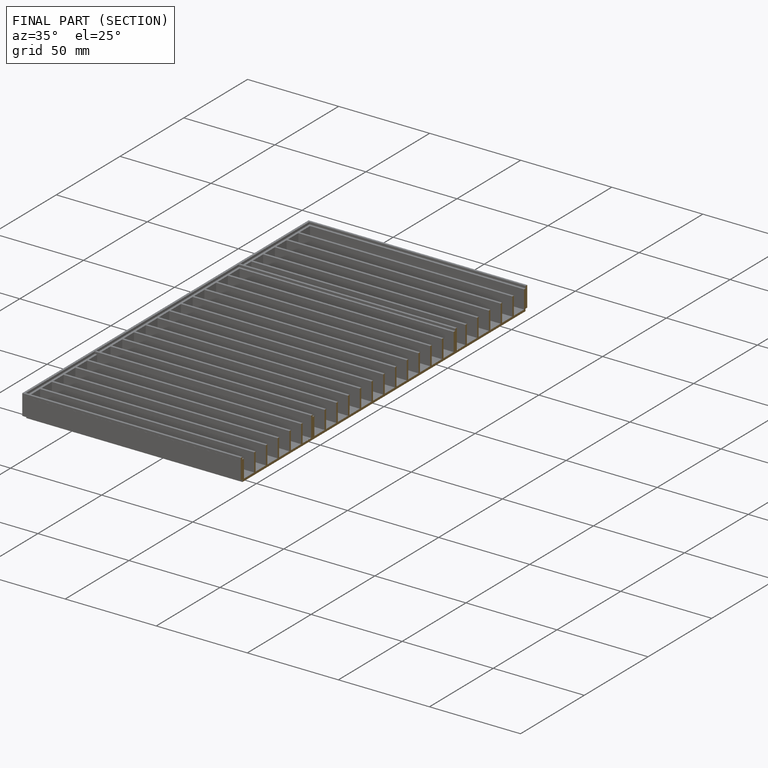
[diagram: finished part — half-section view (interior)]
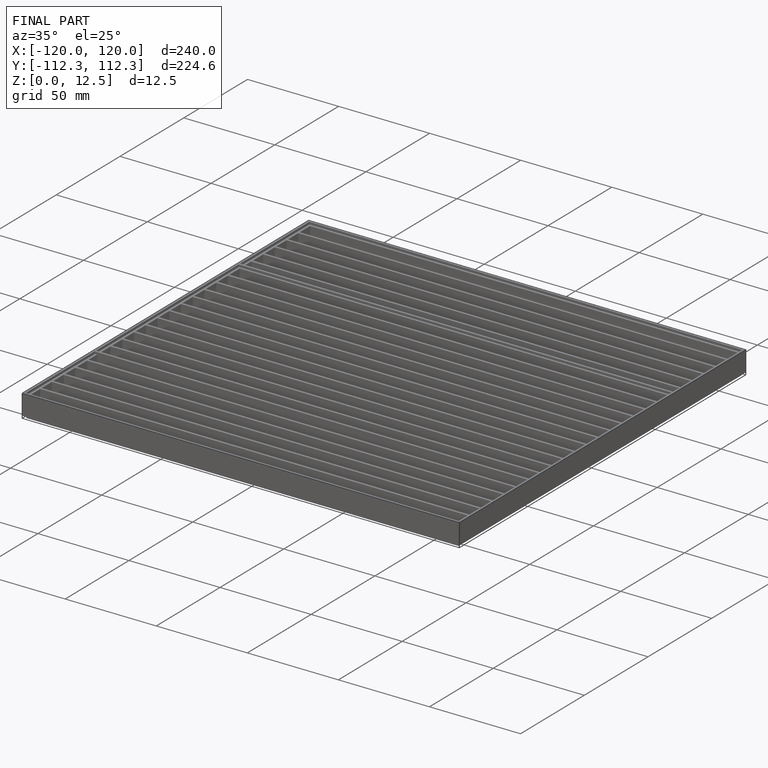
[diagram: finished part — iso view with bounding-box wireframe]
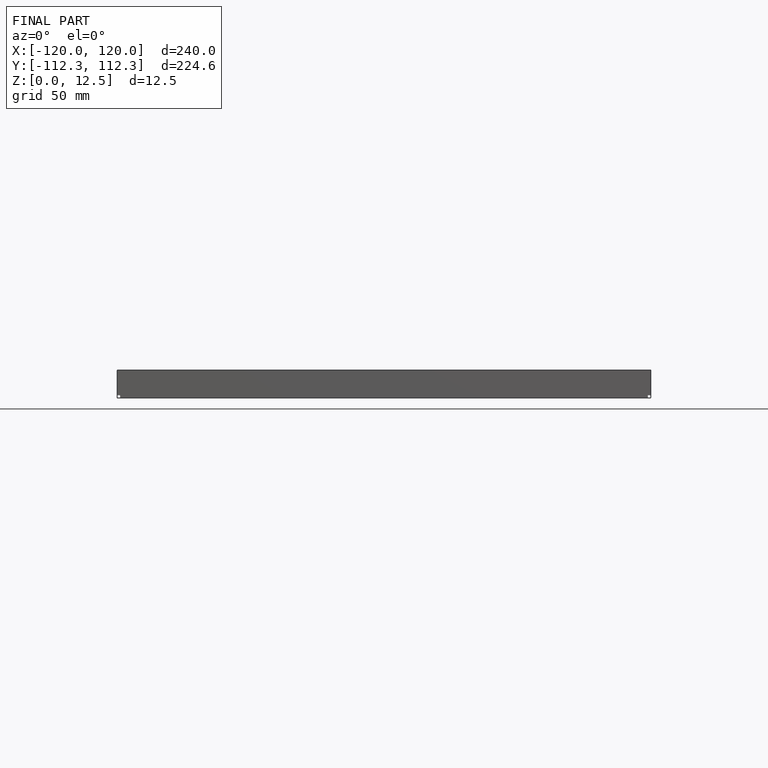
[diagram: finished part — front view with bounding-box wireframe]
